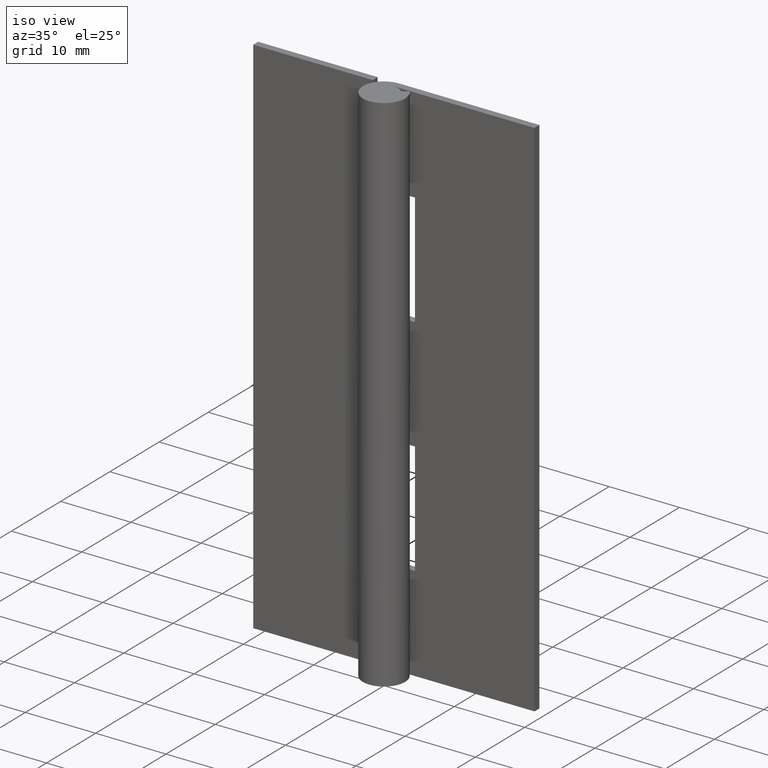
[diagram: clean part render]
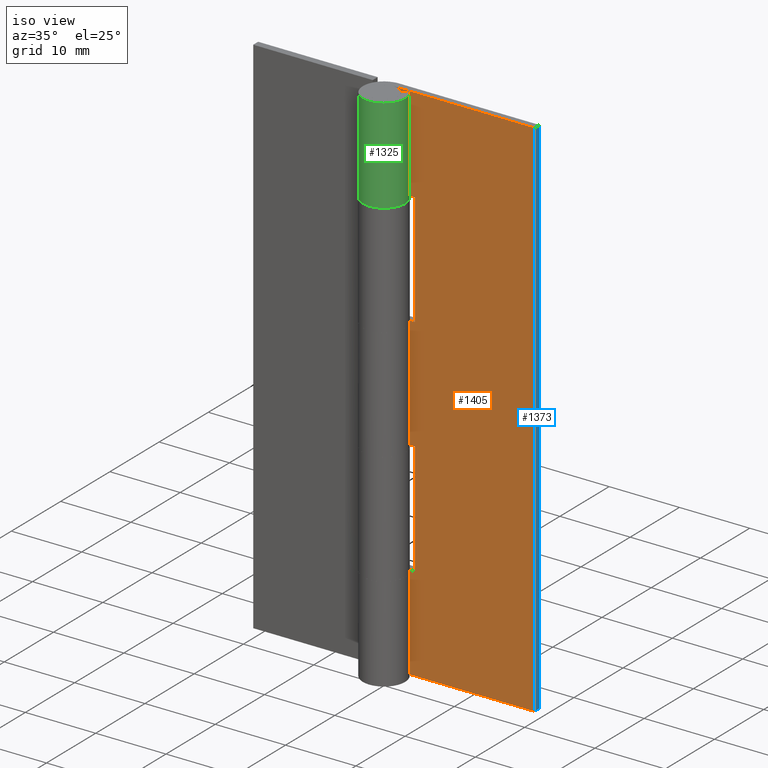
[diagram: same view with three faces highlighted in distinct colors, each labeled with its STEP entity id]
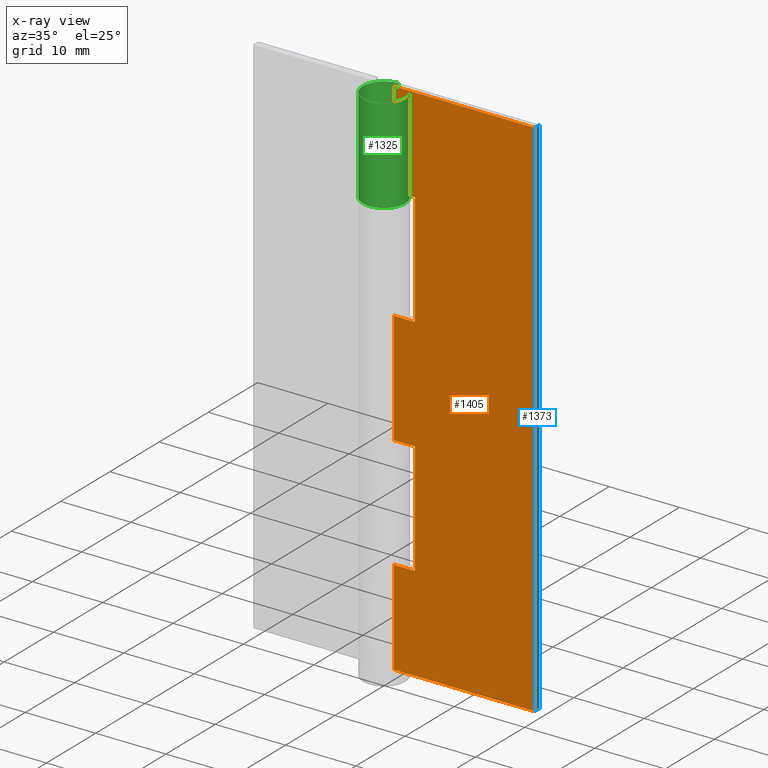
[diagram: x-ray of the same camera — body ghosted, the three highlighted faces saturated]
A machine part, iso view with three faces highlighted in distinct colors.
The next image is the same camera in x-ray (body ghosted, the three faces saturated) — at least one of them is partly hidden behind the body in this view.
Their STEP definitions:

[orange] entity #1405 — the highlighted face is a freeform B-spline surface patch.
#800=CARTESIAN_POINT('',(0.0,2.0,13.500000000000179));
#801=VERTEX_POINT('',#800);
#821=CARTESIAN_POINT('',(3.0,2.0,13.500000000000201));
#822=VERTEX_POINT('',#821);
#823=CARTESIAN_POINT('',(3.0,2.0,13.500000000000201));
#824=CARTESIAN_POINT('',(0.0,2.0,13.500000000000179));
#825=QUASI_UNIFORM_CURVE('',1,(#823,#824),.UNSPECIFIED.,.F.,.U.);
#826=EDGE_CURVE('',#822,#801,#825,.T.);
#878=CARTESIAN_POINT('',(3.0,2.0,29.500000000000000));
#879=VERTEX_POINT('',#878);
#885=CARTESIAN_POINT('',(0.0,2.0,29.500000000000000));
#886=VERTEX_POINT('',#885);
#887=CARTESIAN_POINT('',(0.0,2.0,29.500000000000000));
#888=CARTESIAN_POINT('',(3.0,2.0,29.500000000000000));
#889=QUASI_UNIFORM_CURVE('',1,(#887,#888),.UNSPECIFIED.,.F.,.U.);
#890=EDGE_CURVE('',#886,#879,#889,.T.);
#933=CARTESIAN_POINT('',(3.0,2.0,29.500000000000000));
#934=CARTESIAN_POINT('',(3.0,2.0,13.500000000000201));
#935=QUASI_UNIFORM_CURVE('',1,(#933,#934),.UNSPECIFIED.,.F.,.U.);
#936=EDGE_CURVE('',#879,#822,#935,.T.);
#976=CARTESIAN_POINT('',(3.0,2.0,61.500000000000000));
#977=VERTEX_POINT('',#976);
#983=CARTESIAN_POINT('',(0.0,2.0,61.500000000000000));
#984=VERTEX_POINT('',#983);
#985=CARTESIAN_POINT('',(0.0,2.0,61.500000000000000));
#986=CARTESIAN_POINT('',(3.0,2.0,61.500000000000000));
#987=QUASI_UNIFORM_CURVE('',1,(#985,#986),.UNSPECIFIED.,.F.,.U.);
#988=EDGE_CURVE('',#984,#977,#987,.T.);
#1024=CARTESIAN_POINT('',(3.0,2.0,45.500000000000000));
#1025=VERTEX_POINT('',#1024);
#1068=CARTESIAN_POINT('',(0.0,2.0,45.500000000000000));
#1069=VERTEX_POINT('',#1068);
#1089=CARTESIAN_POINT('',(3.0,2.0,45.500000000000000));
#1090=CARTESIAN_POINT('',(0.0,2.0,45.500000000000000));
#1091=QUASI_UNIFORM_CURVE('',1,(#1089,#1090),.UNSPECIFIED.,.F.,.U.);
#1092=EDGE_CURVE('',#1025,#1069,#1091,.T.);
#1109=CARTESIAN_POINT('',(3.0,2.0,61.500000000000000));
#1110=CARTESIAN_POINT('',(3.0,2.0,45.500000000000000));
#1111=QUASI_UNIFORM_CURVE('',1,(#1109,#1110),.UNSPECIFIED.,.F.,.U.);
#1112=EDGE_CURVE('',#977,#1025,#1111,.T.);
#1124=CARTESIAN_POINT('',(0.0,2.0,0.0));
#1125=VERTEX_POINT('',#1124);
#1180=CARTESIAN_POINT('',(20.0,2.0,0.0));
#1181=VERTEX_POINT('',#1180);
#1187=CARTESIAN_POINT('',(0.0,2.0,0.0));
#1188=CARTESIAN_POINT('',(20.0,2.0,0.0));
#1189=QUASI_UNIFORM_CURVE('',1,(#1187,#1188),.UNSPECIFIED.,.F.,.U.);
#1190=EDGE_CURVE('',#1125,#1181,#1189,.T.);
#1202=CARTESIAN_POINT('',(0.0,2.0,75.0));
#1203=VERTEX_POINT('',#1202);
#1223=CARTESIAN_POINT('',(20.0,2.0,75.0));
#1224=VERTEX_POINT('',#1223);
#1225=CARTESIAN_POINT('',(0.0,2.0,75.0));
#1226=CARTESIAN_POINT('',(20.0,2.0,75.0));
#1227=QUASI_UNIFORM_CURVE('',1,(#1225,#1226),.UNSPECIFIED.,.F.,.U.);
#1228=EDGE_CURVE('',#1203,#1224,#1227,.T.);
#1366=CARTESIAN_POINT('',(20.0,2.0,75.0));
#1367=CARTESIAN_POINT('',(20.0,2.0,0.0));
#1368=QUASI_UNIFORM_CURVE('',1,(#1366,#1367),.UNSPECIFIED.,.F.,.U.);
#1369=EDGE_CURVE('',#1224,#1181,#1368,.T.);
#1374=CARTESIAN_POINT('',(-0.998999961236120,2.0,-3.746249854635448));
#1375=CARTESIAN_POINT('',(-0.998999961236120,2.0,78.746251866292212));
#1376=CARTESIAN_POINT('',(20.999000497677919,2.0,-3.746249854635448));
#1377=CARTESIAN_POINT('',(20.999000497677919,2.0,78.746251866292212));
#1378=B_SPLINE_SURFACE_WITH_KNOTS('',1,1,((#1374,#1376),(#1375,#1377)),.UNSPECIFIED.,.F.,.F.,.U.,(2,2),(2,2),(0.0,82.492501720927663),(0.0,21.998000458914039),.UNSPECIFIED.);
#1379=CARTESIAN_POINT('',(0.0,2.0,45.500000000000000));
#1380=CARTESIAN_POINT('',(0.0,2.0,29.500000000000000));
#1381=QUASI_UNIFORM_CURVE('',1,(#1379,#1380),.UNSPECIFIED.,.F.,.U.);
#1382=EDGE_CURVE('',#1069,#886,#1381,.T.);
#1383=ORIENTED_EDGE('',*,*,#1382,.T.);
#1384=ORIENTED_EDGE('',*,*,#890,.T.);
#1385=ORIENTED_EDGE('',*,*,#936,.T.);
#1386=ORIENTED_EDGE('',*,*,#826,.T.);
#1387=CARTESIAN_POINT('',(0.0,2.0,13.500000000000179));
#1388=CARTESIAN_POINT('',(0.0,2.0,0.0));
#1389=QUASI_UNIFORM_CURVE('',1,(#1387,#1388),.UNSPECIFIED.,.F.,.U.);
#1390=EDGE_CURVE('',#801,#1125,#1389,.T.);
#1391=ORIENTED_EDGE('',*,*,#1390,.T.);
#1392=ORIENTED_EDGE('',*,*,#1190,.T.);
#1393=ORIENTED_EDGE('',*,*,#1369,.F.);
#1394=ORIENTED_EDGE('',*,*,#1228,.F.);
#1395=CARTESIAN_POINT('',(0.0,2.0,75.0));
#1396=CARTESIAN_POINT('',(0.0,2.0,61.500000000000000));
#1397=QUASI_UNIFORM_CURVE('',1,(#1395,#1396),.UNSPECIFIED.,.F.,.U.);
#1398=EDGE_CURVE('',#1203,#984,#1397,.T.);
#1399=ORIENTED_EDGE('',*,*,#1398,.T.);
#1400=ORIENTED_EDGE('',*,*,#988,.T.);
#1401=ORIENTED_EDGE('',*,*,#1112,.T.);
#1402=ORIENTED_EDGE('',*,*,#1092,.T.);
#1403=EDGE_LOOP('',(#1383,#1384,#1385,#1386,#1391,#1392,#1393,#1394,#1399,#1400,#1401,#1402));
#1404=FACE_OUTER_BOUND('',#1403,.T.);
#1405=ADVANCED_FACE('',(#1404),#1378,.F.);

[blue] entity #1373 — the highlighted face is a freeform B-spline surface patch.
#1173=CARTESIAN_POINT('',(20.0,3.0,0.0));
#1174=VERTEX_POINT('',#1173);
#1180=CARTESIAN_POINT('',(20.0,2.0,0.0));
#1181=VERTEX_POINT('',#1180);
#1182=CARTESIAN_POINT('',(20.0,2.0,0.0));
#1183=CARTESIAN_POINT('',(20.0,3.0,0.0));
#1184=QUASI_UNIFORM_CURVE('',1,(#1182,#1183),.UNSPECIFIED.,.F.,.U.);
#1185=EDGE_CURVE('',#1181,#1174,#1184,.T.);
#1223=CARTESIAN_POINT('',(20.0,2.0,75.0));
#1224=VERTEX_POINT('',#1223);
#1230=CARTESIAN_POINT('',(20.0,3.0,75.0));
#1231=VERTEX_POINT('',#1230);
#1232=CARTESIAN_POINT('',(20.0,2.0,75.0));
#1233=CARTESIAN_POINT('',(20.0,3.0,75.0));
#1234=QUASI_UNIFORM_CURVE('',1,(#1232,#1233),.UNSPECIFIED.,.F.,.U.);
#1235=EDGE_CURVE('',#1224,#1231,#1234,.T.);
#1343=CARTESIAN_POINT('',(20.0,3.0,75.0));
#1344=CARTESIAN_POINT('',(20.0,3.0,0.0));
#1345=QUASI_UNIFORM_CURVE('',1,(#1343,#1344),.UNSPECIFIED.,.F.,.U.);
#1346=EDGE_CURVE('',#1231,#1174,#1345,.T.);
#1358=CARTESIAN_POINT('',(20.0,1.950050001938194,-3.746249854635448));
#1359=CARTESIAN_POINT('',(20.0,1.950050001938194,78.746251866292212));
#1360=CARTESIAN_POINT('',(20.0,3.049950024883897,-3.746249854635448));
#1361=CARTESIAN_POINT('',(20.0,3.049950024883897,78.746251866292212));
#1362=B_SPLINE_SURFACE_WITH_KNOTS('',1,1,((#1358,#1360),(#1359,#1361)),.UNSPECIFIED.,.F.,.F.,.U.,(2,2),(2,2),(0.0,82.492501720927663),(0.041708334948495,0.958291687403247),.UNSPECIFIED.);
#1363=ORIENTED_EDGE('',*,*,#1185,.T.);
#1364=ORIENTED_EDGE('',*,*,#1346,.F.);
#1365=ORIENTED_EDGE('',*,*,#1235,.F.);
#1366=CARTESIAN_POINT('',(20.0,2.0,75.0));
#1367=CARTESIAN_POINT('',(20.0,2.0,0.0));
#1368=QUASI_UNIFORM_CURVE('',1,(#1366,#1367),.UNSPECIFIED.,.F.,.U.);
#1369=EDGE_CURVE('',#1224,#1181,#1368,.T.);
#1370=ORIENTED_EDGE('',*,*,#1369,.T.);
#1371=EDGE_LOOP('',(#1363,#1364,#1365,#1370));
#1372=FACE_OUTER_BOUND('',#1371,.T.);
#1373=ADVANCED_FACE('',(#1372),#1362,.F.);

[green] entity #1325 — the highlighted face is a freeform B-spline surface patch.
#946=CARTESIAN_POINT('',(2.279802623035600,1.950000000000000,61.500000000000000));
#947=VERTEX_POINT('',#946);
#948=CARTESIAN_POINT('',(0.0,3.0,61.500000000000000));
#949=VERTEX_POINT('',#948);
#950=CARTESIAN_POINT('',(2.279802623035600,1.950000000000000,61.500000000000000));
#951=CARTESIAN_POINT('',(3.848634957309785,0.115831758573665,61.500000000000007));
#952=CARTESIAN_POINT('',(2.392947636996992,-1.809364973296021,61.500000000000000));
#953=CARTESIAN_POINT('',(0.937260316684198,-3.734561705165708,61.500000000000007));
#954=CARTESIAN_POINT('',(-1.254990039801111,-2.724885318687744,61.500000000000000));
#955=CARTESIAN_POINT('',(-3.447240396286424,-1.715208932209778,61.500000000000007));
#956=CARTESIAN_POINT('',(-2.930414301431048,0.642395533895113,61.500000000000000));
#957=CARTESIAN_POINT('',(-2.413588206575672,3.0,61.500000000000007));
#958=CARTESIAN_POINT('',(0.0,3.0,61.500000000000000));
#966=(BOUNDED_CURVE()B_SPLINE_CURVE(2,(#950,#951,#952,#953,#954,#955,#956,#957,#958),.UNSPECIFIED.,.F.,.U.)B_SPLINE_CURVE_WITH_KNOTS((3,2,2,2,3),(0.0,0.250000000000000,0.500000000000000,0.750000000000000,1.0),.UNSPECIFIED.)CURVE()GEOMETRIC_REPRESENTATION_ITEM()RATIONAL_B_SPLINE_CURVE((1.0,0.779144352681743,1.0,0.779144352681743,1.0,0.779144352681743,1.0,0.779144352681743,1.0))REPRESENTATION_ITEM(''));
#967=EDGE_CURVE('',#947,#949,#966,.T.);
#1237=CARTESIAN_POINT('',(0.0,3.0,75.0));
#1238=VERTEX_POINT('',#1237);
#1244=CARTESIAN_POINT('',(2.279802623035600,1.950000000000000,75.0));
#1245=VERTEX_POINT('',#1244);
#1246=CARTESIAN_POINT('',(2.279802623035600,1.950000000000000,75.0));
#1247=CARTESIAN_POINT('',(3.848634957309785,0.115831758573665,75.0));
#1248=CARTESIAN_POINT('',(2.392947636996992,-1.809364973296021,75.0));
#1249=CARTESIAN_POINT('',(0.937260316684198,-3.734561705165708,75.0));
#1250=CARTESIAN_POINT('',(-1.254990039801111,-2.724885318687744,75.0));
#1251=CARTESIAN_POINT('',(-3.447240396286424,-1.715208932209778,75.0));
#1252=CARTESIAN_POINT('',(-2.930414301431048,0.642395533895113,75.0));
#1253=CARTESIAN_POINT('',(-2.413588206575672,3.0,75.0));
#1254=CARTESIAN_POINT('',(0.0,3.0,75.0));
#1262=(BOUNDED_CURVE()B_SPLINE_CURVE(2,(#1246,#1247,#1248,#1249,#1250,#1251,#1252,#1253,#1254),.UNSPECIFIED.,.F.,.U.)B_SPLINE_CURVE_WITH_KNOTS((3,2,2,2,3),(0.0,0.250000000000000,0.500000000000000,0.750000000000000,1.0),.UNSPECIFIED.)CURVE()GEOMETRIC_REPRESENTATION_ITEM()RATIONAL_B_SPLINE_CURVE((1.0,0.779144352681743,1.0,0.779144352681743,1.0,0.779144352681743,1.0,0.779144352681743,1.0))REPRESENTATION_ITEM(''));
#1263=EDGE_CURVE('',#1245,#1238,#1262,.T.);
#1278=CARTESIAN_POINT('',(2.279802623035600,1.950000000000000,75.0));
#1279=CARTESIAN_POINT('',(2.279802623035600,1.950000000000000,61.500000000000000));
#1280=QUASI_UNIFORM_CURVE('',1,(#1278,#1279),.UNSPECIFIED.,.F.,.U.);
#1281=EDGE_CURVE('',#1245,#947,#1280,.T.);
#1293=CARTESIAN_POINT('',(0.026179606495119,2.999885769192513,75.337500000000020));
#1294=CARTESIAN_POINT('',(0.026179606495119,2.999885769192513,61.154062500000002));
#1295=CARTESIAN_POINT('',(-3.859889451737975,3.033798980089468,75.337500000000020));
#1296=CARTESIAN_POINT('',(-3.859889451737975,3.033798980089468,61.154062499999988));
#1297=CARTESIAN_POINT('',(-2.908763699634346,-0.734230031862974,75.337500000000020));
#1298=CARTESIAN_POINT('',(-2.908763699634346,-0.734230031862974,61.154062500000002));
#1299=CARTESIAN_POINT('',(-1.957637947530718,-4.502259043815414,75.337500000000020));
#1300=CARTESIAN_POINT('',(-1.957637947530718,-4.502259043815414,61.154062499999988));
#1301=CARTESIAN_POINT('',(1.446790221317007,-2.628078776502234,75.337500000000020));
#1302=CARTESIAN_POINT('',(1.446790221317007,-2.628078776502234,61.154062500000002));
#1303=CARTESIAN_POINT('',(4.851218390164732,-0.753898509189053,75.337500000000020));
#1304=CARTESIAN_POINT('',(4.851218390164732,-0.753898509189053,61.154062499999988));
#1305=CARTESIAN_POINT('',(2.176123113036860,2.065063727081262,75.337500000000020));
#1306=CARTESIAN_POINT('',(2.176123113036860,2.065063727081262,61.154062500000002));
#1314=(BOUNDED_SURFACE()B_SPLINE_SURFACE(1,2,((#1293,#1295,#1297,#1299,#1301,#1303,#1305),(#1294,#1296,#1298,#1300,#1302,#1304,#1306)),.UNSPECIFIED.,.F.,.F.,.U.)B_SPLINE_SURFACE_WITH_KNOTS((2,2),(3,2,2,3),(0.0,14.183437500000030),(0.0,5.896062847899996,11.792125695799990,17.688188543699990),.UNSPECIFIED.)GEOMETRIC_REPRESENTATION_ITEM()RATIONAL_B_SPLINE_SURFACE(((1.0,0.611066621529600,1.0,0.611066621529600,1.0,0.611066621529600,1.0),(1.0,0.611066621529600,1.0,0.611066621529600,1.0,0.611066621529600,1.0)))REPRESENTATION_ITEM('')SURFACE());
#1315=ORIENTED_EDGE('',*,*,#967,.F.);
#1316=ORIENTED_EDGE('',*,*,#1281,.F.);
#1317=ORIENTED_EDGE('',*,*,#1263,.T.);
#1318=CARTESIAN_POINT('',(0.0,3.0,75.0));
#1319=CARTESIAN_POINT('',(0.0,3.0,61.500000000000000));
#1320=QUASI_UNIFORM_CURVE('',1,(#1318,#1319),.UNSPECIFIED.,.F.,.U.);
#1321=EDGE_CURVE('',#1238,#949,#1320,.T.);
#1322=ORIENTED_EDGE('',*,*,#1321,.T.);
#1323=EDGE_LOOP('',(#1315,#1316,#1317,#1322));
#1324=FACE_OUTER_BOUND('',#1323,.T.);
#1325=ADVANCED_FACE('',(#1324),#1314,.T.);